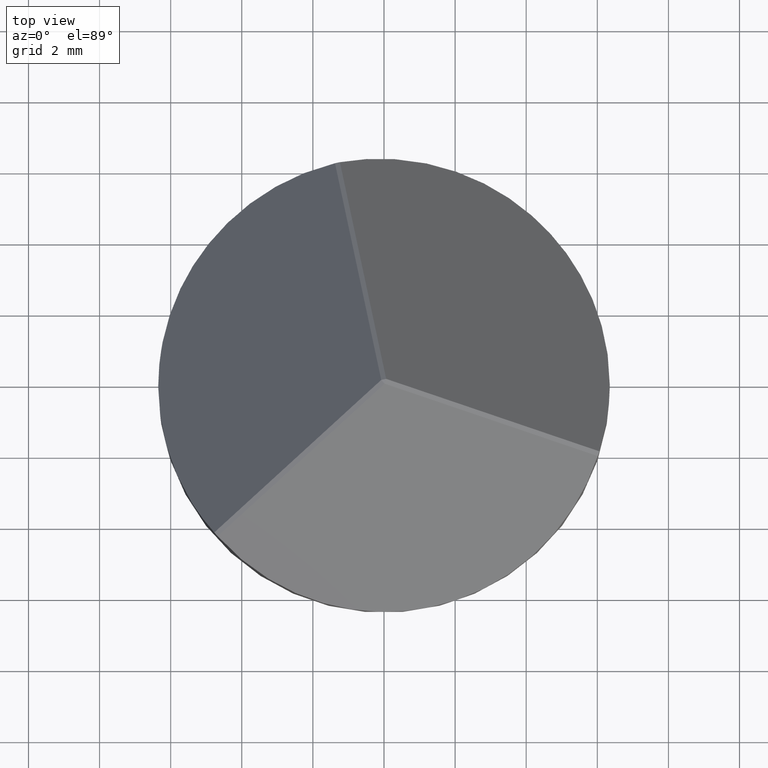
[diagram: clean part render]
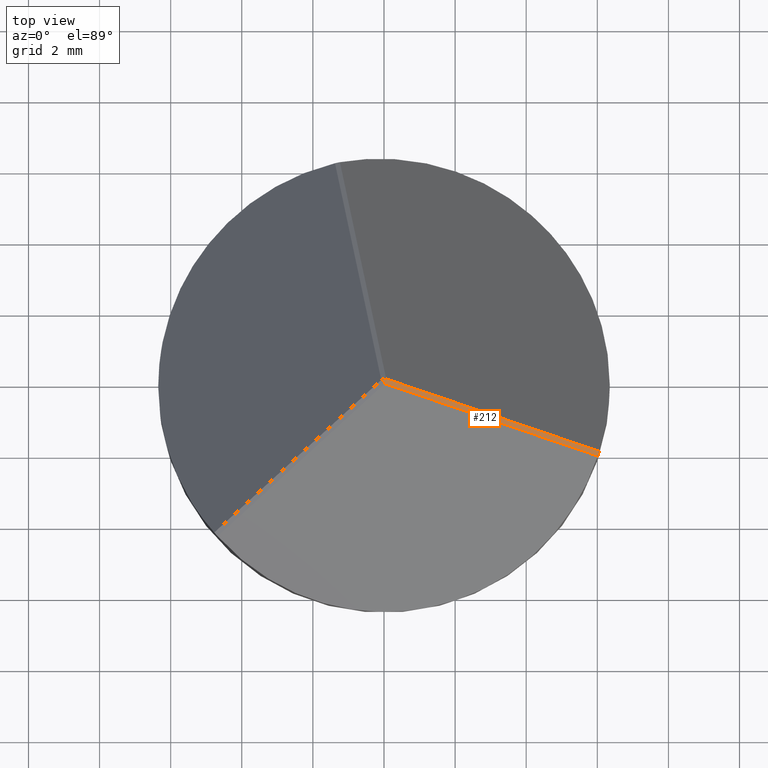
[diagram: same view with one face highlighted and labeled with its STEP entity id]
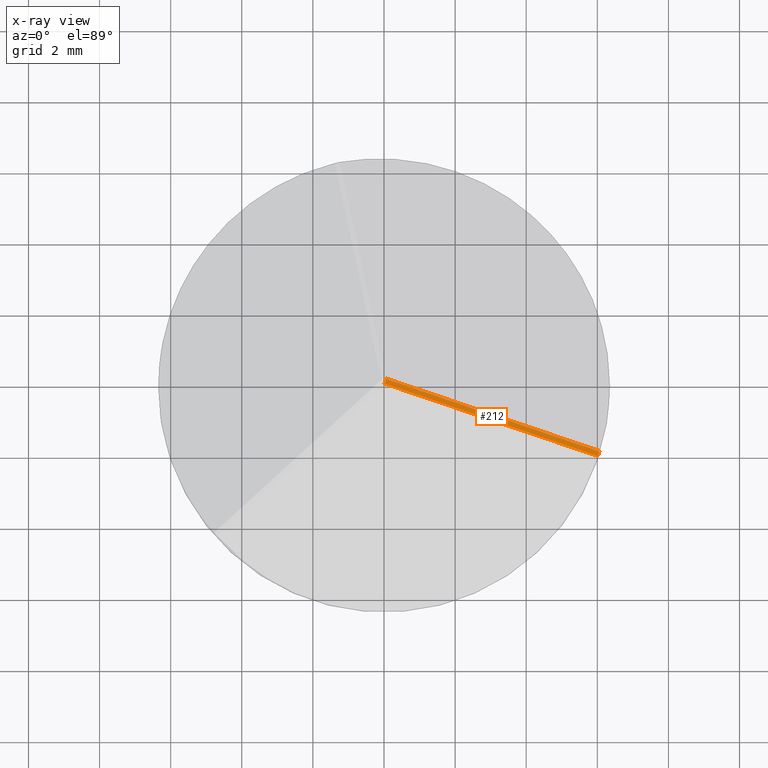
[diagram: x-ray of the same camera — body ghosted, the highlighted face saturated]
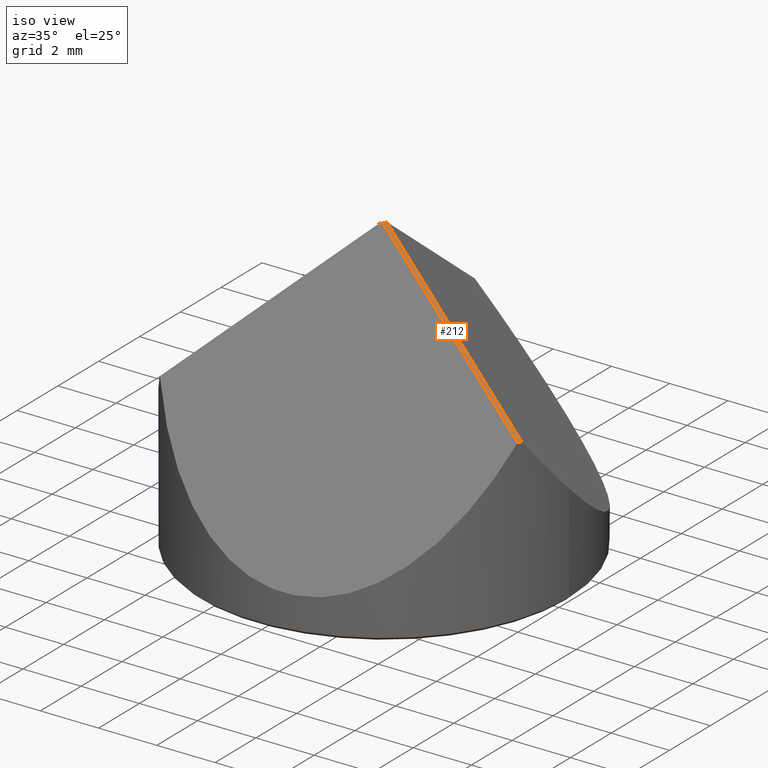
[diagram: same view with one face highlighted and labeled with its STEP entity id]
A machine part, top view. The second image highlights one B-rep face of the part: STEP entity #212.
The next image is the same camera in x-ray: the body ghosted, the highlighted face saturated — about 0% of this face is hidden behind the body in this view.
A second angle (iso view) of the same face is appended — the face is thin or edge-on in the first view.
In plain terms, the highlighted planar face has unit normal (-0.5488, 0.1794, -0.8165).
Its self-contained STEP definition (entity closure, byte-faithful):
#5 = VERTEX_POINT ( 'NONE', #224 ) ;
#10 = CARTESIAN_POINT ( 'NONE',  ( 6.013412275601540458, -2.039944313858767178, 4.913675856748647597 ) ) ;
#11 =( BOUNDED_CURVE ( )  B_SPLINE_CURVE ( 3, ( #268, #129, #150, #10 ),
 .UNSPECIFIED., .F., .F. ) 
 B_SPLINE_CURVE_WITH_KNOTS ( ( 4, 4 ),
 ( 6.272049537170599542, 6.294321077188591573 ),
 .UNSPECIFIED. ) 
 CURVE ( )  GEOMETRIC_REPRESENTATION_ITEM ( )  RATIONAL_B_SPLINE_CURVE ( ( 1.000000000000000000, 0.9999586653025819283, 0.9999586653025819283, 1.000000000000000000 ) ) 
 REPRESENTATION_ITEM ( '' )  );
#16 = FACE_OUTER_BOUND ( 'NONE', #89, .T. ) ;
#22 = LINE ( 'NONE', #194, #233 ) ;
#29 = DIRECTION ( 'NONE',  ( 0.7760903269836917362, -0.2536739462952649071, -0.5773502691896258421 ) ) ;
#30 = ORIENTED_EDGE ( 'NONE', *, *, #131, .F. ) ;
#39 = LINE ( 'NONE', #267, #74 ) ;
#43 = AXIS2_PLACEMENT_3D ( 'NONE', #361, #111, #105 ) ;
#74 = VECTOR ( 'NONE', #206, 1000.000000000000114 ) ;
#77 = ORIENTED_EDGE ( 'NONE', *, *, #159, .F. ) ;
#78 = LINE ( 'NONE', #155, #326 ) ;
#82 = ORIENTED_EDGE ( 'NONE', *, *, #347, .F. ) ;
#87 = VERTEX_POINT ( 'NONE', #236 ) ;
#89 = EDGE_LOOP ( 'NONE', ( #77, #82, #30, #325 ) ) ;
#91 = VERTEX_POINT ( 'NONE', #316 ) ;
#105 = DIRECTION ( 'NONE',  ( 0.7760903269836917362, -0.2536739462952650181, -0.5773502691896257311 ) ) ;
#111 = DIRECTION ( 'NONE',  ( -0.5487787330234554783, 0.1793745676357279273, -0.8164965809277260345 ) ) ;
#129 = CARTESIAN_POINT ( 'NONE',  ( 6.043203299936917183, -1.950491292360709839, 4.913304656743204823 ) ) ;
#131 = EDGE_CURVE ( 'NONE', #87, #91, #39, .T. ) ;
#150 = CARTESIAN_POINT ( 'NONE',  ( 6.028556822411204941, -1.995300740465629552, 4.913304656743205712 ) ) ;
#155 = CARTESIAN_POINT ( 'NONE',  ( 4.191524909123934606, -1.444439716145166752, 6.269017013437423458 ) ) ;
#159 = EDGE_CURVE ( 'NONE', #5, #306, #11, .T. ) ;
#171 = CARTESIAN_POINT ( 'NONE',  ( 6.013412275601540458, -2.039944313858767178, 4.913675856748647597 ) ) ;
#194 = CARTESIAN_POINT ( 'NONE',  ( 4.235462525477924345, -1.310016928385321133, 6.269017013437423458 ) ) ;
#196 = EDGE_CURVE ( 'NONE', #306, #87, #78, .T. ) ;
#206 = DIRECTION ( 'NONE',  ( 0.3106858647307806920, 0.9505126477099012927, 6.307969425358070962E-29 ) ) ;
#212 = ADVANCED_FACE ( 'NONE', ( #16 ), #215, .F. ) ;
#215 = PLANE ( 'NONE',  #43 ) ;
#224 = CARTESIAN_POINT ( 'NONE',  ( 6.057349891955519539, -1.905521526098945984, 4.913675856748688453 ) ) ;
#233 = VECTOR ( 'NONE', #29, 1000.000000000000114 ) ;
#236 = CARTESIAN_POINT ( 'NONE',  ( 0.01683570817218900048, -0.07989509119468835019, 9.374658006696654056 ) ) ;
#243 = DIRECTION ( 'NONE',  ( -0.7760903269836918472, 0.2536739462952650181, 0.5773502691896257311 ) ) ;
#267 = CARTESIAN_POINT ( 'NONE',  ( 0.03880451634918339471, -0.01268369731476422235, 9.374658006696654056 ) ) ;
#268 = CARTESIAN_POINT ( 'NONE',  ( 6.057349891955519539, -1.905521526098945984, 4.913675856748688453 ) ) ;
#306 = VERTEX_POINT ( 'NONE', #171 ) ;
#316 = CARTESIAN_POINT ( 'NONE',  ( 0.06077332452617782710, 0.05452769656515735197, 9.374658006696654056 ) ) ;
#325 = ORIENTED_EDGE ( 'NONE', *, *, #196, .F. ) ;
#326 = VECTOR ( 'NONE', #243, 999.9999999999998863 ) ;
#347 = EDGE_CURVE ( 'NONE', #91, #5, #22, .T. ) ;
#361 = CARTESIAN_POINT ( 'NONE',  ( 4.235462525477923457, -1.310016928385321133, 6.269017013437423458 ) ) ;